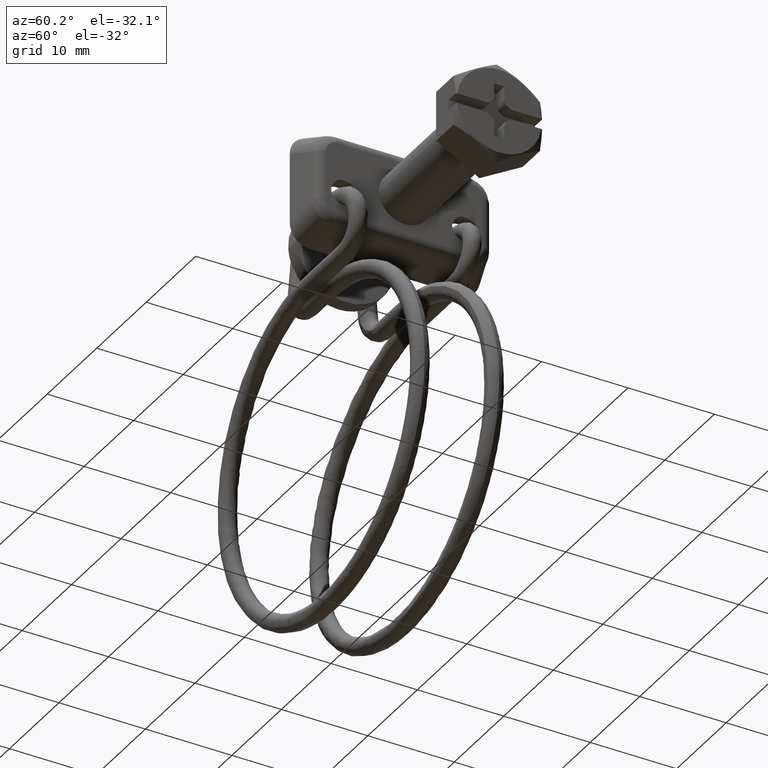
[diagram: clean part render]
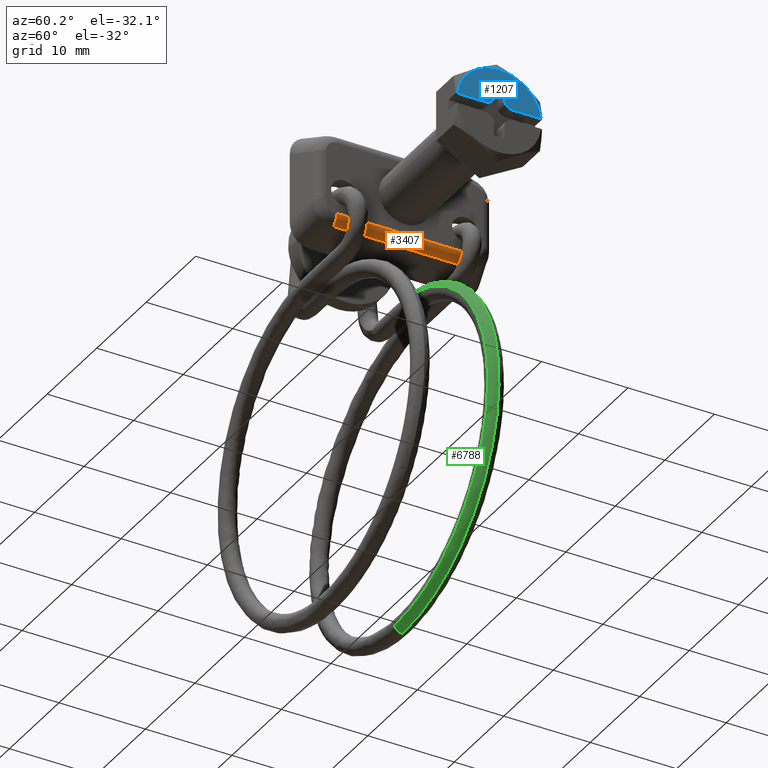
[diagram: same view with three faces highlighted in distinct colors, each labeled with its STEP entity id]
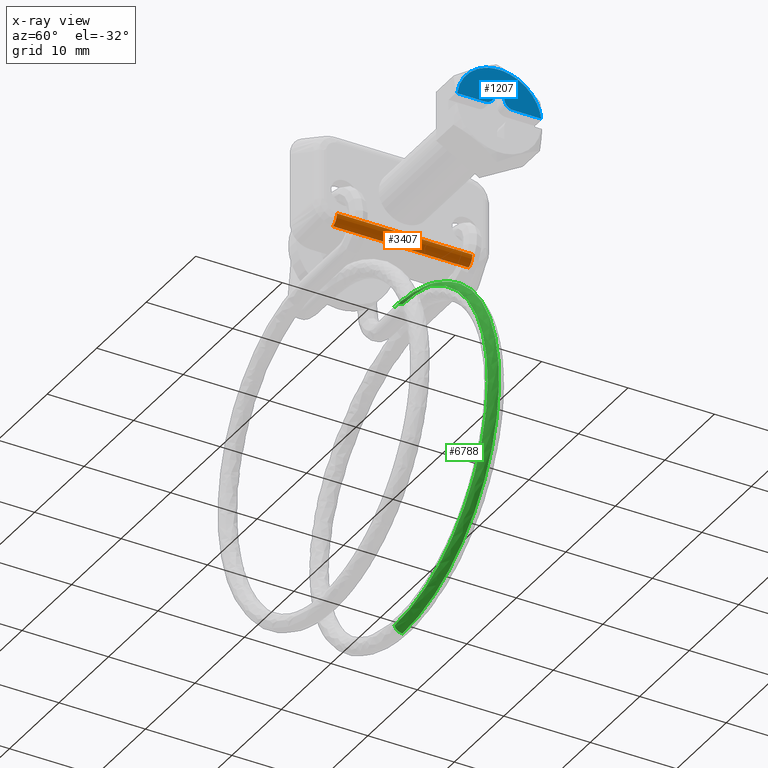
[diagram: x-ray of the same camera — body ghosted, the three highlighted faces saturated]
A machine part, auxiliary view with three faces highlighted in distinct colors.
The next image is the same camera in x-ray (body ghosted, the three faces saturated) — at least one of them is partly hidden behind the body in this view.
Their STEP definitions:

[orange] entity #3407 — the highlighted face is a freeform B-spline surface patch.
#3255=CARTESIAN_POINT('',(-34.700000000000003,7.837173833659421,-4.168399938202366));
#3256=VERTEX_POINT('',#3255);
#3257=CARTESIAN_POINT('',(-35.478652022990950,7.837173833659421,-5.291995008621631));
#3258=VERTEX_POINT('',#3257);
#3259=CARTESIAN_POINT('',(-34.700000000000003,7.837173833659421,-4.168399938202366));
#3260=CARTESIAN_POINT('',(-34.699999999999996,7.837173833659421,-5.000000620858016));
#3261=CARTESIAN_POINT('',(-35.478652022990957,7.837173833659421,-5.291995008621594));
#3269=(BOUNDED_CURVE()B_SPLINE_CURVE(2,(#3259,#3260,#3261),.UNSPECIFIED.,.F.,.U.)CURVE()GEOMETRIC_REPRESENTATION_ITEM()QUASI_UNIFORM_CURVE()RATIONAL_B_SPLINE_CURVE((1.0,0.821925578800842,1.0))REPRESENTATION_ITEM(''));
#3270=EDGE_CURVE('',#3256,#3258,#3269,.T.);
#3363=CARTESIAN_POINT('',(-35.519234412313871,-8.229032525342229,-5.306388324449798));
#3364=CARTESIAN_POINT('',(-35.519234412313871,8.238828992634460,-5.306388324449798));
#3365=CARTESIAN_POINT('',(-34.649913292473613,-8.229032525342229,-5.015517546606942));
#3366=CARTESIAN_POINT('',(-34.649913292473613,8.238828992634460,-5.015517546606942));
#3367=CARTESIAN_POINT('',(-34.701933759771748,-8.229032525342230,-4.100302331597218));
#3368=CARTESIAN_POINT('',(-34.701933759771748,8.238828992634460,-4.100302331597218));
#3376=(BOUNDED_SURFACE()B_SPLINE_SURFACE(1,2,((#3363,#3365,#3367),(#3364,#3366,#3368)),.UNSPECIFIED.,.F.,.F.,.U.)B_SPLINE_SURFACE_WITH_KNOTS((2,2),(3,3),(0.0,16.467861517976690),(0.0,0.982392160871811),.UNSPECIFIED.)GEOMETRIC_REPRESENTATION_ITEM()RATIONAL_B_SPLINE_SURFACE(((1.0,0.791743426154121,0.992666103500668),(1.0,0.791743426154121,0.992666103500668)))REPRESENTATION_ITEM('')SURFACE());
#3377=CARTESIAN_POINT('',(-34.700000000000003,-7.837173833659261,-4.168399938202345));
#3378=VERTEX_POINT('',#3377);
#3379=CARTESIAN_POINT('',(-35.478652022990900,-7.837173833659261,-5.291995008621610));
#3380=VERTEX_POINT('',#3379);
#3381=CARTESIAN_POINT('',(-34.700000000000003,-7.837173833659261,-4.168399938202345));
#3382=CARTESIAN_POINT('',(-34.700000000000003,-7.837173833659263,-5.000000620857962));
#3383=CARTESIAN_POINT('',(-35.478652022990921,-7.837173833659261,-5.291995008621558));
#3391=(BOUNDED_CURVE()B_SPLINE_CURVE(2,(#3381,#3382,#3383),.UNSPECIFIED.,.F.,.U.)CURVE()GEOMETRIC_REPRESENTATION_ITEM()QUASI_UNIFORM_CURVE()RATIONAL_B_SPLINE_CURVE((1.0,0.821925578800853,1.0))REPRESENTATION_ITEM(''));
#3392=EDGE_CURVE('',#3378,#3380,#3391,.T.);
#3393=ORIENTED_EDGE('',*,*,#3392,.T.);
#3394=CARTESIAN_POINT('',(-35.478652022990950,7.837173833659421,-5.291995008621631));
#3395=CARTESIAN_POINT('',(-35.478652022990900,-7.837173833659261,-5.291995008621610));
#3396=QUASI_UNIFORM_CURVE('',1,(#3394,#3395),.UNSPECIFIED.,.F.,.U.);
#3397=EDGE_CURVE('',#3258,#3380,#3396,.T.);
#3398=ORIENTED_EDGE('',*,*,#3397,.F.);
#3399=ORIENTED_EDGE('',*,*,#3270,.F.);
#3400=CARTESIAN_POINT('',(-34.700000000000003,-7.837173833659261,-4.168399938202345));
#3401=CARTESIAN_POINT('',(-34.700000000000003,7.837173833659421,-4.168399938202366));
#3402=QUASI_UNIFORM_CURVE('',1,(#3400,#3401),.UNSPECIFIED.,.F.,.U.);
#3403=EDGE_CURVE('',#3378,#3256,#3402,.T.);
#3404=ORIENTED_EDGE('',*,*,#3403,.F.);
#3405=EDGE_LOOP('',(#3393,#3398,#3399,#3404));
#3406=FACE_OUTER_BOUND('',#3405,.T.);
#3407=ADVANCED_FACE('',(#3406),#3376,.T.);

[blue] entity #1207 — the highlighted face is a freeform B-spline surface patch.
#759=CARTESIAN_POINT('',(4.0,0.599999000000025,3.099999000000110));
#760=VERTEX_POINT('',#759);
#761=CARTESIAN_POINT('',(4.0,-0.599998000000198,3.099999000000110));
#762=VERTEX_POINT('',#761);
#763=CARTESIAN_POINT('',(4.0,0.599999000000025,3.099999000000110));
#764=CARTESIAN_POINT('',(4.0,-0.599998000000198,3.099999000000110));
#765=QUASI_UNIFORM_CURVE('',1,(#763,#764),.UNSPECIFIED.,.F.,.U.);
#766=EDGE_CURVE('',#760,#762,#765,.T.);
#787=CARTESIAN_POINT('',(4.0,0.599999000000025,1.600000000000000));
#788=VERTEX_POINT('',#787);
#789=CARTESIAN_POINT('',(4.0,0.599999000000025,1.600000000000000));
#790=CARTESIAN_POINT('',(4.0,0.599999000000025,3.099999000000110));
#791=QUASI_UNIFORM_CURVE('',1,(#789,#790),.UNSPECIFIED.,.F.,.U.);
#792=EDGE_CURVE('',#788,#760,#791,.T.);
#818=CARTESIAN_POINT('',(4.0,1.599999000000025,0.600000000000108));
#819=VERTEX_POINT('',#818);
#820=CARTESIAN_POINT('',(4.0,0.599999000000025,1.600000000000000));
#821=CARTESIAN_POINT('',(4.000000000000000,0.599999000000025,0.600000000000000));
#822=CARTESIAN_POINT('',(4.0,1.599999000000025,0.600000000000108));
#830=(BOUNDED_CURVE()B_SPLINE_CURVE(2,(#820,#821,#822),.UNSPECIFIED.,.F.,.U.)CURVE()GEOMETRIC_REPRESENTATION_ITEM()QUASI_UNIFORM_CURVE()RATIONAL_B_SPLINE_CURVE((1.0,0.707106781186548,1.0))REPRESENTATION_ITEM(''));
#831=EDGE_CURVE('',#788,#819,#830,.T.);
#855=CARTESIAN_POINT('',(4.0,4.863124347857450,0.600000000000108));
#856=VERTEX_POINT('',#855);
#864=CARTESIAN_POINT('',(4.0,4.863124347857450,0.600000000000108));
#865=CARTESIAN_POINT('',(4.0,1.599999000000025,0.600000000000108));
#866=QUASI_UNIFORM_CURVE('',1,(#864,#865),.UNSPECIFIED.,.F.,.U.);
#867=EDGE_CURVE('',#856,#819,#866,.T.);
#1099=CARTESIAN_POINT('',(4.0,-1.599998000000085,0.600000000000000));
#1100=VERTEX_POINT('',#1099);
#1106=CARTESIAN_POINT('',(4.0,-4.863124347857450,0.600000000000108));
#1107=VERTEX_POINT('',#1106);
#1108=CARTESIAN_POINT('',(4.0,-1.599998000000085,0.600000000000000));
#1109=CARTESIAN_POINT('',(4.0,-4.863124347857450,0.600000000000108));
#1110=QUASI_UNIFORM_CURVE('',1,(#1108,#1109),.UNSPECIFIED.,.F.,.U.);
#1111=EDGE_CURVE('',#1100,#1107,#1110,.T.);
#1137=CARTESIAN_POINT('',(4.0,-0.599998000000085,1.600000000000000));
#1138=VERTEX_POINT('',#1137);
#1139=CARTESIAN_POINT('',(4.0,-1.599998000000085,0.600000000000000));
#1140=CARTESIAN_POINT('',(4.000000000000000,-0.599998000000085,0.600000000000000));
#1141=CARTESIAN_POINT('',(4.0,-0.599998000000085,1.600000000000000));
#1149=(BOUNDED_CURVE()B_SPLINE_CURVE(2,(#1139,#1140,#1141),.UNSPECIFIED.,.F.,.U.)CURVE()GEOMETRIC_REPRESENTATION_ITEM()QUASI_UNIFORM_CURVE()RATIONAL_B_SPLINE_CURVE((1.0,0.707106781186548,1.0))REPRESENTATION_ITEM(''));
#1150=EDGE_CURVE('',#1100,#1138,#1149,.T.);
#1167=CARTESIAN_POINT('',(4.0,-0.599998000000198,3.099999000000110));
#1168=CARTESIAN_POINT('',(4.0,-0.599998000000085,1.600000000000000));
#1169=QUASI_UNIFORM_CURVE('',1,(#1167,#1168),.UNSPECIFIED.,.F.,.U.);
#1170=EDGE_CURVE('',#762,#1138,#1169,.T.);
#1178=CARTESIAN_POINT('',(4.0,-5.348950542660116,0.385215133674923));
#1179=CARTESIAN_POINT('',(4.0,5.348950716578997,0.385215133674923));
#1180=CARTESIAN_POINT('',(4.0,-5.348950542660116,5.114782472336819));
#1181=CARTESIAN_POINT('',(4.0,5.348950716578997,5.114782472336819));
#1182=B_SPLINE_SURFACE_WITH_KNOTS('',1,1,((#1178,#1180),(#1179,#1181)),.UNSPECIFIED.,.F.,.F.,.U.,(2,2),(2,2),(0.0,10.697901259239110),(0.0,4.729567338661896),.UNSPECIFIED.);
#1183=ORIENTED_EDGE('',*,*,#1111,.F.);
#1184=ORIENTED_EDGE('',*,*,#1150,.T.);
#1185=ORIENTED_EDGE('',*,*,#1170,.F.);
#1186=ORIENTED_EDGE('',*,*,#766,.F.);
#1187=ORIENTED_EDGE('',*,*,#792,.F.);
#1188=ORIENTED_EDGE('',*,*,#831,.T.);
#1189=ORIENTED_EDGE('',*,*,#867,.F.);
#1190=CARTESIAN_POINT('',(4.0,-4.863124347857444,0.600000000000106));
#1191=CARTESIAN_POINT('',(4.000000000000001,-4.332601479348219,4.899997798236649));
#1192=CARTESIAN_POINT('',(4.0,0.0,4.899997798236650));
#1193=CARTESIAN_POINT('',(4.000000000000001,4.332601479348219,4.899997798236649));
#1194=CARTESIAN_POINT('',(4.0,4.863124347857444,0.600000000000107));
#1202=(BOUNDED_CURVE()B_SPLINE_CURVE(2,(#1190,#1191,#1192,#1193,#1194),.UNSPECIFIED.,.F.,.U.)B_SPLINE_CURVE_WITH_KNOTS((3,2,3),(0.0,0.500000000000000,1.0),.UNSPECIFIED.)CURVE()GEOMETRIC_REPRESENTATION_ITEM()RATIONAL_B_SPLINE_CURVE((1.0,0.749149195625625,1.0,0.749149195625625,1.0))REPRESENTATION_ITEM(''));
#1203=EDGE_CURVE('',#1107,#856,#1202,.T.);
#1204=ORIENTED_EDGE('',*,*,#1203,.F.);
#1205=EDGE_LOOP('',(#1183,#1184,#1185,#1186,#1187,#1188,#1189,#1204));
#1206=FACE_OUTER_BOUND('',#1205,.T.);
#1207=ADVANCED_FACE('',(#1206),#1182,.T.);

[green] entity #6788 — the highlighted face is a freeform B-spline surface patch.
#5512=CARTESIAN_POINT('',(-23.049997121545580,3.364492663198822,-7.496699031767636));
#5513=VERTEX_POINT('',#5512);
#5529=CARTESIAN_POINT('',(-23.050012727896259,4.300002000000467,-6.850001000010378));
#5530=VERTEX_POINT('',#5529);
#5531=CARTESIAN_POINT('',(-23.049997121545569,3.364492663198822,-7.496699031767637));
#5532=CARTESIAN_POINT('',(-23.050004875354649,3.608722922985214,-6.850001000791446));
#5533=CARTESIAN_POINT('',(-23.050012727896259,4.300002000000467,-6.850001000010378));
#5541=(BOUNDED_CURVE()B_SPLINE_CURVE(2,(#5531,#5532,#5533),.UNSPECIFIED.,.F.,.U.)B_SPLINE_CURVE_WITH_KNOTS((3,3),(0.810000000530751,1.0),.UNSPECIFIED.)CURVE()GEOMETRIC_REPRESENTATION_ITEM()RATIONAL_B_SPLINE_CURVE((0.893152553130166,0.777401154323590,1.0))REPRESENTATION_ITEM(''));
#5542=EDGE_CURVE('',#5513,#5530,#5541,.T.);
#6669=CARTESIAN_POINT('',(-23.050009267033559,4.300002000000934,-45.850000999995487));
#6670=VERTEX_POINT('',#6669);
#6671=CARTESIAN_POINT('',(-23.050009267033563,4.300002000000934,-45.850000999995487));
#6672=CARTESIAN_POINT('',(-3.427091294660546,4.300002000000934,-45.850010325445872));
#6673=CARTESIAN_POINT('',(-3.550384913305333,4.300002000000935,-26.227479692671501));
#6674=CARTESIAN_POINT('',(-3.672138884410422,4.300002000000935,-6.849988351821090));
#6675=CARTESIAN_POINT('',(-23.050012727896259,4.300002000000467,-6.850001000010378));
#6683=(BOUNDED_CURVE()B_SPLINE_CURVE(2,(#6671,#6672,#6673,#6674,#6675),.UNSPECIFIED.,.F.,.U.)B_SPLINE_CURVE_WITH_KNOTS((3,2,3),(-3.821089690517864,-2.0,-0.194542996774529),.UNSPECIFIED.)CURVE()GEOMETRIC_REPRESENTATION_ITEM()RATIONAL_B_SPLINE_CURVE((0.943591831785874,0.684712589356072,1.0,0.687419094984811,0.939189574003851))REPRESENTATION_ITEM(''));
#6684=EDGE_CURVE('',#6670,#5530,#6683,.T.);
#6710=CARTESIAN_POINT('',(-23.049999999927621,3.364945210144892,-45.203131635883452));
#6711=VERTEX_POINT('',#6710);
#6723=CARTESIAN_POINT('',(-23.049999999927614,3.364945210144892,-45.203131635883452));
#6724=CARTESIAN_POINT('',(-4.077865529165979,3.364945210127509,-45.203131635817201));
#6725=CARTESIAN_POINT('',(-4.197070181424553,3.364717514945777,-26.231457861592325));
#6726=CARTESIAN_POINT('',(-4.314786208858358,3.364492663215988,-7.496701892274396));
#6727=CARTESIAN_POINT('',(-23.049997121545580,3.364492663198822,-7.496699031767638));
#6735=(BOUNDED_CURVE()B_SPLINE_CURVE(2,(#6723,#6724,#6725,#6726,#6727),.UNSPECIFIED.,.F.,.U.)B_SPLINE_CURVE_WITH_KNOTS((3,2,3),(-3.821089097923091,-2.0,-0.194543996372833),.UNSPECIFIED.)CURVE()GEOMETRIC_REPRESENTATION_ITEM()RATIONAL_B_SPLINE_CURVE((0.842771303802389,0.611552889420982,0.893152553776853,0.613970274771098,0.838839317502598))REPRESENTATION_ITEM(''));
#6736=EDGE_CURVE('',#6711,#5513,#6735,.T.);
#6741=CARTESIAN_POINT('',(-25.761179225904630,4.305383459104716,-45.660607080727218));
#6742=CARTESIAN_POINT('',(-3.408562757101685,4.305383459104716,-48.798879860022083));
#6743=CARTESIAN_POINT('',(-3.550384913305333,4.305383459104716,-26.227479692671494));
#6744=CARTESIAN_POINT('',(-3.690759031905487,4.305383459104717,-3.886538834929763));
#6745=CARTESIAN_POINT('',(-25.807615251958605,4.305383459104715,-7.045971417496535));
#6746=CARTESIAN_POINT('',(-25.761179225904648,4.302695731815723,-45.660607080727239));
#6747=CARTESIAN_POINT('',(-3.408562757101684,4.302695731815721,-48.798879860022076));
#6748=CARTESIAN_POINT('',(-3.550384913305334,4.302695731815723,-26.227479692671508));
#6749=CARTESIAN_POINT('',(-3.690759031905487,4.302695731815720,-3.886538834929763));
#6750=CARTESIAN_POINT('',(-25.807615251958605,4.302695731815720,-7.045971417496535));
#6751=CARTESIAN_POINT('',(-25.761179225904627,3.608722931956842,-45.660607080727218));
#6752=CARTESIAN_POINT('',(-3.408562757101685,3.608722931956841,-48.798879860022090));
#6753=CARTESIAN_POINT('',(-3.550384913305333,3.608722931956842,-26.227479692671505));
#6754=CARTESIAN_POINT('',(-3.690759031905486,3.608722931956841,-3.886538834929764));
#6755=CARTESIAN_POINT('',(-25.807615251958609,3.608722931956841,-7.045971417496534));
#6756=CARTESIAN_POINT('',(-25.670590168086999,3.362657801839835,-45.015378763091071));
#6757=CARTESIAN_POINT('',(-4.064845188383822,3.362657801839834,-48.048791940506874));
#6758=CARTESIAN_POINT('',(-4.201928618580206,3.362657801839835,-26.231573516380166));
#6759=CARTESIAN_POINT('',(-4.337612394681249,3.362657801839835,-4.637114028709785));
#6760=CARTESIAN_POINT('',(-25.715474619900192,3.362657801839835,-7.690979993563355));
#6761=CARTESIAN_POINT('',(-25.669916170383576,3.360827036219938,-45.010578156762371));
#6762=CARTESIAN_POINT('',(-4.069728039162245,3.360827036219936,-48.043211161246127));
#6763=CARTESIAN_POINT('',(-4.206776212446558,3.360827036219938,-26.231603975111540));
#6764=CARTESIAN_POINT('',(-4.342425091616900,3.360827036219937,-4.642698433372352));
#6765=CARTESIAN_POINT('',(-25.714789078225568,3.360827036219938,-7.695778964978122));
#6773=(BOUNDED_SURFACE()B_SPLINE_SURFACE(2,2,((#6741,#6746,#6751,#6756,#6761),(#6742,#6747,#6752,#6757,#6762),(#6743,#6748,#6753,#6758,#6763),(#6744,#6749,#6754,#6759,#6764),(#6745,#6750,#6755,#6760,#6765)),.UNSPECIFIED.,.F.,.F.,.U.)B_SPLINE_SURFACE_WITH_KNOTS((3,2,3),(3,1,1,3),(0.0,35.691429492885881,71.143780046206558),(0.0,0.006257021083797,1.253143754064655,1.263918286898018),.UNSPECIFIED.)GEOMETRIC_REPRESENTATION_ITEM()RATIONAL_B_SPLINE_SURFACE(((1.002234053214617,1.001117026607308,0.777401156495024,0.894152775805089,0.895153000738303),(0.655198120671012,0.654467878337397,0.508216394273663,0.584541321881039,0.585195206564350),(1.002234053214617,1.001117026607308,0.777401156495024,0.894152775805089,0.895153000738303),(0.657522739884151,0.656789906677172,0.510019527642469,0.586615253329936,0.587271457972433),(0.997615957698795,0.996504078128299,0.773819046324960,0.890032697355190,0.891028313450514)))REPRESENTATION_ITEM('')SURFACE());
#6774=ORIENTED_EDGE('',*,*,#5542,.F.);
#6775=ORIENTED_EDGE('',*,*,#6736,.F.);
#6776=CARTESIAN_POINT('',(-23.049999999927621,3.364945210144892,-45.203131635883452));
#6777=CARTESIAN_POINT('',(-23.050000949132741,3.415054867127774,-45.335349654640972));
#6778=CARTESIAN_POINT('',(-23.050002033861691,3.492539150079826,-45.457238662658241));
#6779=CARTESIAN_POINT('',(-23.050005268110951,3.777820058850987,-45.742301835920621));
#6780=CARTESIAN_POINT('',(-23.050007512229371,4.038116918532927,-45.850033442918047));
#6781=CARTESIAN_POINT('',(-23.050009267033559,4.300002000000934,-45.850000999995487));
#6782=B_SPLINE_CURVE_WITH_KNOTS('',3,(#6776,#6777,#6778,#6779,#6780,#6781),.UNSPECIFIED.,.F.,.U.,(4,2,4),(0.807474354678723,0.875000000000000,1.0),.UNSPECIFIED.);
#6783=EDGE_CURVE('',#6711,#6670,#6782,.T.);
#6784=ORIENTED_EDGE('',*,*,#6783,.T.);
#6785=ORIENTED_EDGE('',*,*,#6684,.T.);
#6786=EDGE_LOOP('',(#6774,#6775,#6784,#6785));
#6787=FACE_OUTER_BOUND('',#6786,.T.);
#6788=ADVANCED_FACE('',(#6787),#6773,.T.);